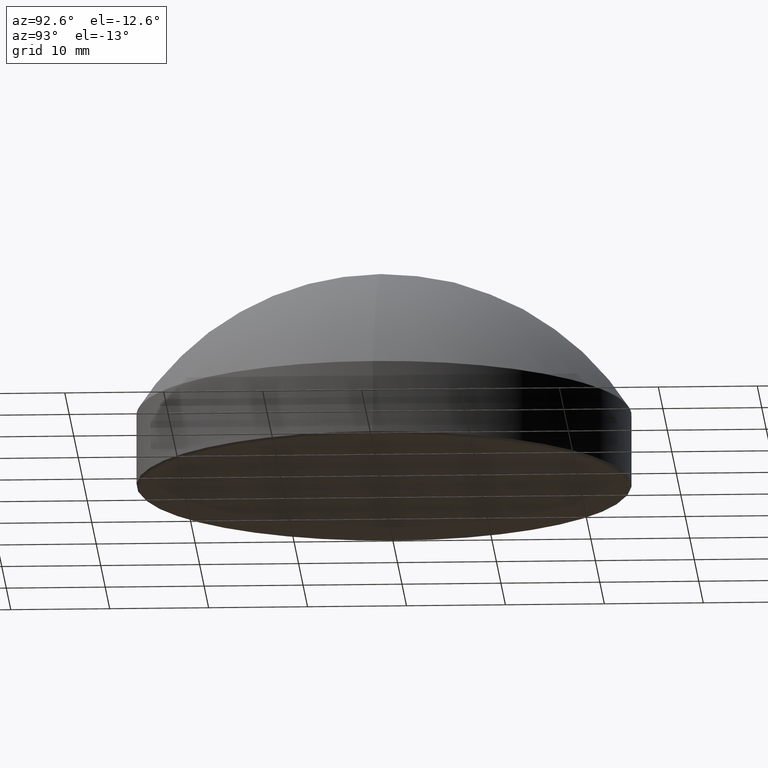
[diagram: clean part render]
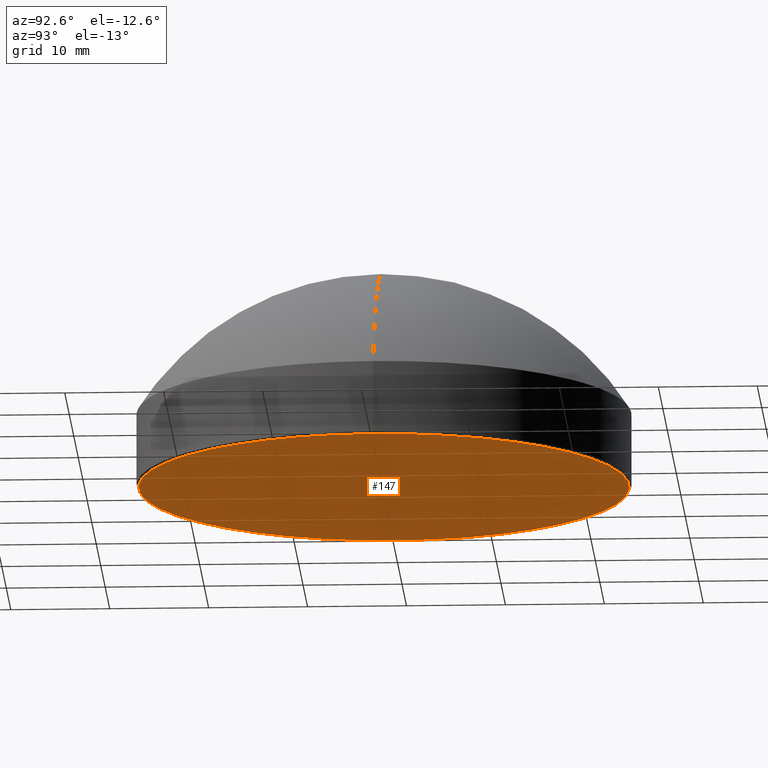
[diagram: same view with one face highlighted and labeled with its STEP entity id]
A machine part, auxiliary view. The second image highlights one B-rep face of the part: STEP entity #147.
In plain terms, the highlighted planar face has unit normal (0, 0, 1).
Its self-contained STEP definition (entity closure, byte-faithful):
#8 = CARTESIAN_POINT ( 'NONE',  ( 0.000000000000000000, 0.000000000000000000, 0.000000000000000000 ) ) ;
#11 = ORIENTED_EDGE ( 'NONE', *, *, #87, .T. ) ;
#17 = AXIS2_PLACEMENT_3D ( 'NONE', #8, #151, #168 ) ;
#23 = VERTEX_POINT ( 'NONE', #202 ) ;
#36 = AXIS2_PLACEMENT_3D ( 'NONE', #207, #89, #67 ) ;
#42 = ORIENTED_EDGE ( 'NONE', *, *, #117, .T. ) ;
#49 = AXIS2_PLACEMENT_3D ( 'NONE', #154, #57, #108 ) ;
#55 = VERTEX_POINT ( 'NONE', #72 ) ;
#57 = DIRECTION ( 'NONE',  ( 0.000000000000000000, 0.000000000000000000, 1.000000000000000000 ) ) ;
#67 = DIRECTION ( 'NONE',  ( 1.000000000000000000, 0.000000000000000000, 0.000000000000000000 ) ) ;
#72 = CARTESIAN_POINT ( 'NONE',  ( -24.79999999999998295, 3.049370529876908502E-15, 0.000000000000000000 ) ) ;
#87 = EDGE_CURVE ( 'NONE', #55, #23, #129, .T. ) ;
#89 = DIRECTION ( 'NONE',  ( -0.000000000000000000, -0.000000000000000000, -1.000000000000000000 ) ) ;
#108 = DIRECTION ( 'NONE',  ( 1.000000000000000000, 0.000000000000000000, -0.000000000000000000 ) ) ;
#114 = PLANE ( 'NONE',  #49 ) ;
#115 = EDGE_LOOP ( 'NONE', ( #42, #11 ) ) ;
#117 = EDGE_CURVE ( 'NONE', #23, #55, #187, .T. ) ;
#126 = FACE_OUTER_BOUND ( 'NONE', #115, .T. ) ;
#129 = CIRCLE ( 'NONE', #36, 24.79999999999998295 ) ;
#147 = ADVANCED_FACE ( 'NONE', ( #126 ), #114, .F. ) ;
#151 = DIRECTION ( 'NONE',  ( -0.000000000000000000, -0.000000000000000000, -1.000000000000000000 ) ) ;
#154 = CARTESIAN_POINT ( 'NONE',  ( 0.000000000000000000, 0.000000000000000000, 0.000000000000000000 ) ) ;
#168 = DIRECTION ( 'NONE',  ( 1.000000000000000000, 0.000000000000000000, 0.000000000000000000 ) ) ;
#187 = CIRCLE ( 'NONE', #17, 24.79999999999998295 ) ;
#202 = CARTESIAN_POINT ( 'NONE',  ( 24.79999999999998295, 0.000000000000000000, 0.000000000000000000 ) ) ;
#207 = CARTESIAN_POINT ( 'NONE',  ( 0.000000000000000000, 0.000000000000000000, 0.000000000000000000 ) ) ;